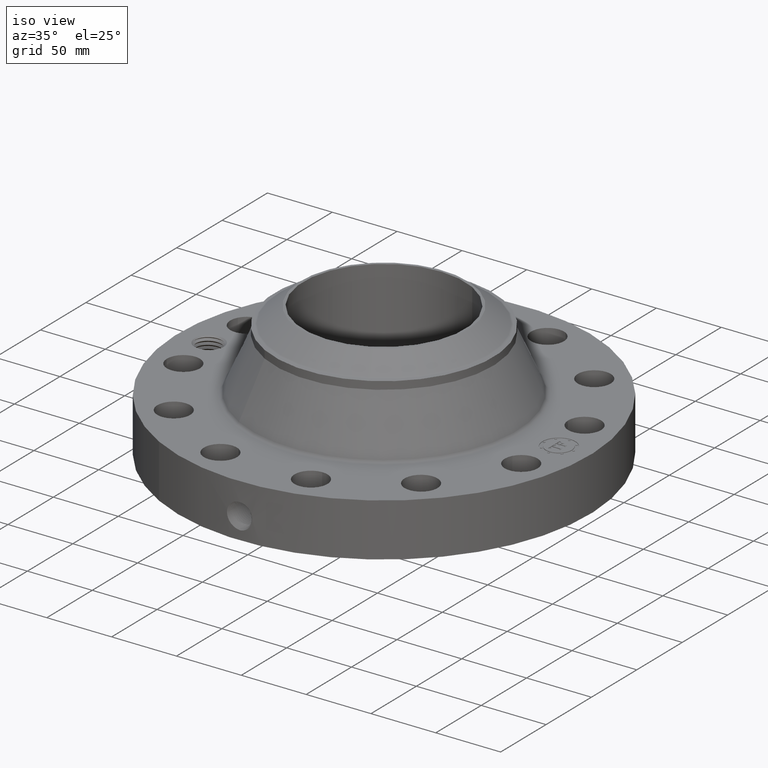
[diagram: clean part render]
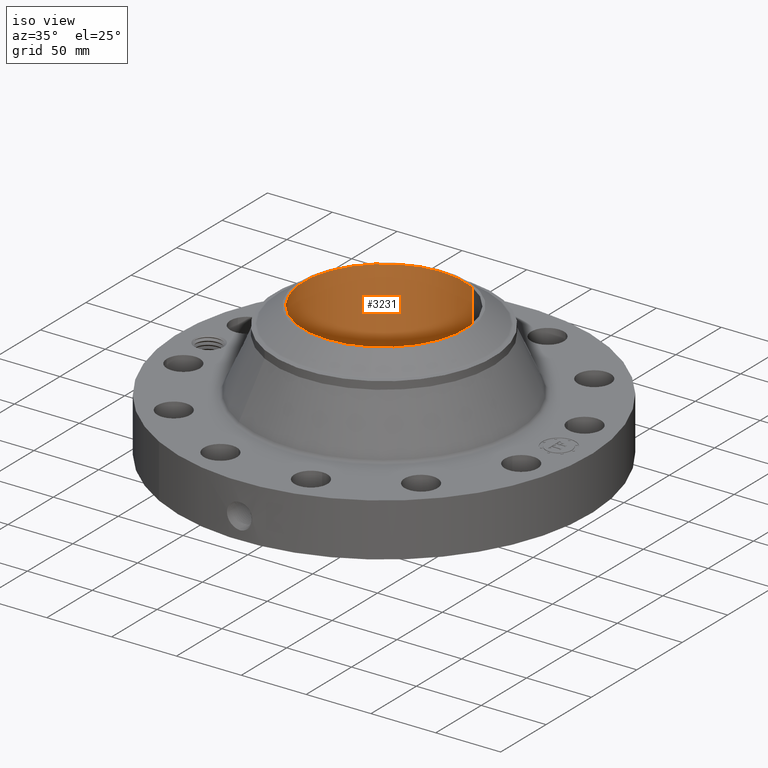
[diagram: same view with one face highlighted and labeled with its STEP entity id]
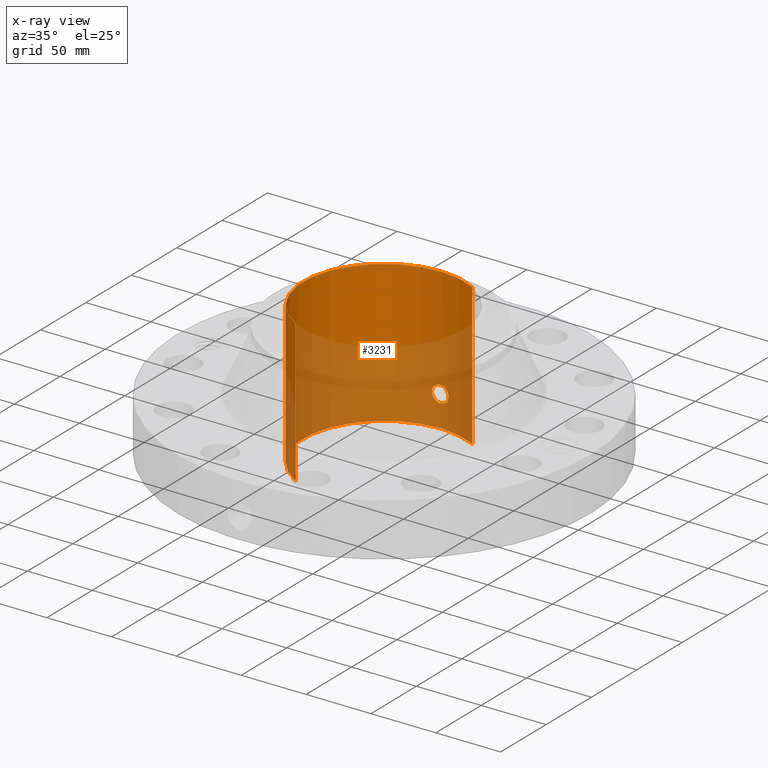
[diagram: x-ray of the same camera — body ghosted, the highlighted face saturated]
A machine part, iso view. The second image highlights one B-rep face of the part: STEP entity #3231.
The next image is the same camera in x-ray: the body ghosted, the highlighted face saturated — about 55% of this face is hidden behind the body in this view.
In plain terms, the highlighted cylindrical surface (partial cylindrical patch) has radius 62.1919 mm, axis along (0, 0, -1).
Its self-contained STEP definition (entity closure, byte-faithful):
#2422=AXIS2_PLACEMENT_3D('Circle Axis2P3D',#2420,#2421,$) ;
#3108=AXIS2_PLACEMENT_3D('Cylinder Axis2P3D',#3105,#3106,#3107) ;
#3180=AXIS2_PLACEMENT_3D('Circle Axis2P3D',#3178,#3179,$) ;
#2415=CARTESIAN_POINT('Vertex',(1.17387343128,2.1487609028,-5.31508345647E-015)) ;
#2417=CARTESIAN_POINT('Vertex',(-1.17387343128,-2.1487609028,-5.31508345647E-015)) ;
#2420=CARTESIAN_POINT('Axis2P3D Location',(0.,0.,0.)) ;
#3105=CARTESIAN_POINT('Axis2P3D Location',(0.,0.,2.15500000001)) ;
#3114=CARTESIAN_POINT('Vertex',(1.17387343128,2.1487609028,4.31000000002)) ;
#3116=CARTESIAN_POINT('Vertex',(-1.17387343128,-2.1487609028,4.31000000002)) ;
#3119=CARTESIAN_POINT('Line Origine',(1.17387343128,2.1487609028,2.15500000001)) ;
#3124=CARTESIAN_POINT('Line Origine',(-1.17387343128,-2.1487609028,2.15500000001)) ;
#3178=CARTESIAN_POINT('Axis2P3D Location',(0.,0.,4.31000000002)) ;
#3190=CARTESIAN_POINT('Control Point',(0.219395640473,2.43865081613,1.05985638466)) ;
#3191=CARTESIAN_POINT('Control Point',(0.20692269215,2.4397729573,1.08268796342)) ;
#3192=CARTESIAN_POINT('Control Point',(0.191483626173,2.44108155863,1.10388995895)) ;
#3193=CARTESIAN_POINT('Control Point',(0.173359206825,2.44247509002,1.12295451163)) ;
#3194=CARTESIAN_POINT('Control Point',(0.112235026015,2.44650024415,1.17237969937)) ;
#3195=CARTESIAN_POINT('Control Point',(0.0351525956358,2.44911528488,1.19593316279)) ;
#3196=CARTESIAN_POINT('Control Point',(-0.0193796331724,2.44931496356,1.1976122153)) ;
#3197=CARTESIAN_POINT('Control Point',(-0.12391182616,2.44644979063,1.17256256861)) ;
#3198=CARTESIAN_POINT('Control Point',(-0.202924261779,2.44049551426,1.09986114181)) ;
#3199=CARTESIAN_POINT('Control Point',(-0.231958041999,2.43755149918,1.053766482)) ;
#3200=CARTESIAN_POINT('Control Point',(-0.255797537372,2.43511034999,0.975563828251)) ;
#3201=CARTESIAN_POINT('Control Point',(-0.248358299347,2.43587136853,0.896057455654)) ;
#3202=CARTESIAN_POINT('Control Point',(-0.242122717022,2.43651927832,0.869373660638)) ;
#3203=CARTESIAN_POINT('Control Point',(-0.232361871819,2.43748429626,0.843878142626)) ;
#3204=CARTESIAN_POINT('Control Point',(-0.219395640473,2.43865081613,0.820143615352)) ;
#3205=CARTESIAN_POINT('Vertex',(0.219395640473,2.43865081613,1.05985638466)) ;
#3207=CARTESIAN_POINT('Vertex',(-0.219395640473,2.43865081613,0.820143615352)) ;
#3211=CARTESIAN_POINT('Control Point',(-0.219395640473,2.43865081613,0.820143615352)) ;
#3212=CARTESIAN_POINT('Control Point',(-0.206922692151,2.4397729573,0.797312036594)) ;
#3213=CARTESIAN_POINT('Control Point',(-0.191483626176,2.44108155863,0.776110041062)) ;
#3214=CARTESIAN_POINT('Control Point',(-0.173359206826,2.44247509002,0.757045488384)) ;
#3215=CARTESIAN_POINT('Control Point',(-0.112235026018,2.44650024415,0.707620300643)) ;
#3216=CARTESIAN_POINT('Control Point',(-0.035152595642,2.44911528488,0.684066837217)) ;
#3217=CARTESIAN_POINT('Control Point',(0.0193796331644,2.44931496356,0.682387784708)) ;
#3218=CARTESIAN_POINT('Control Point',(0.123911826174,2.44644979063,0.707437431402)) ;
#3219=CARTESIAN_POINT('Control Point',(0.202924261804,2.44049551426,0.780138858218)) ;
#3220=CARTESIAN_POINT('Control Point',(0.231958041985,2.43755149919,0.82623351796)) ;
#3221=CARTESIAN_POINT('Control Point',(0.255797537377,2.43511034999,0.904436171741)) ;
#3222=CARTESIAN_POINT('Control Point',(0.248358299346,2.43587136853,0.98394254437)) ;
#3223=CARTESIAN_POINT('Control Point',(0.242122717031,2.43651927831,1.01062633935)) ;
#3224=CARTESIAN_POINT('Control Point',(0.232361871824,2.43748429626,1.03612185737)) ;
#3225=CARTESIAN_POINT('Control Point',(0.219395640473,2.43865081613,1.05985638466)) ;
#2421=DIRECTION('Axis2P3D Direction',(0.,0.,-0.0393700787402)) ;
#3106=DIRECTION('Axis2P3D Direction',(0.,0.,-0.0393700787402)) ;
#3107=DIRECTION('Axis2P3D XDirection',(-0.0188750212049,-0.0345504945626,0.)) ;
#3120=DIRECTION('Vector Direction',(0.,0.,-0.0393700787402)) ;
#3125=DIRECTION('Vector Direction',(0.,0.,-0.0393700787402)) ;
#3179=DIRECTION('Axis2P3D Direction',(0.,0.,-0.0393700787402)) ;
#3121=VECTOR('Line Direction',#3120,0.0393700787402) ;
#3126=VECTOR('Line Direction',#3125,0.0393700787402) ;
#3184=ORIENTED_EDGE('',*,*,#3182,.F.) ;
#3185=ORIENTED_EDGE('',*,*,#3128,.T.) ;
#3186=ORIENTED_EDGE('',*,*,#2424,.T.) ;
#3187=ORIENTED_EDGE('',*,*,#3123,.F.) ;
#3228=ORIENTED_EDGE('',*,*,#3209,.F.) ;
#3229=ORIENTED_EDGE('',*,*,#3226,.F.) ;
#3230=FACE_BOUND('',#3227,.T.) ;
#3231=ADVANCED_FACE('PartBody',(#3188,#3230),#3109,.F.) ;
#3189=B_SPLINE_CURVE_WITH_KNOTS('',5,(#3190,#3191,#3192,#3193,#3194,#3195,#3196,#3197,#3198,#3199,#3200,#3201,#3202,#3203,#3204),.UNSPECIFIED.,.F.,.U.,(6,3,3,3,6),(0.,4.67703129293,14.0185621464,23.3684124738,28.2304120731),.UNSPECIFIED.) ;
#3210=B_SPLINE_CURVE_WITH_KNOTS('',5,(#3211,#3212,#3213,#3214,#3215,#3216,#3217,#3218,#3219,#3220,#3221,#3222,#3223,#3224,#3225),.UNSPECIFIED.,.F.,.U.,(6,3,3,3,6),(0.,4.67703129258,14.0185621461,23.368412477,28.2304120784),.UNSPECIFIED.) ;
#2423=CIRCLE('generated circle',#2422,2.44850000001) ;
#3181=CIRCLE('generated circle',#3180,2.44850000001) ;
#3109=CYLINDRICAL_SURFACE('generated cylinder',#3108,2.44850000001) ;
#2424=EDGE_CURVE('',#2418,#2416,#2423,.T.) ;
#3123=EDGE_CURVE('',#3115,#2416,#3122,.T.) ;
#3128=EDGE_CURVE('',#3117,#2418,#3127,.T.) ;
#3182=EDGE_CURVE('',#3117,#3115,#3181,.T.) ;
#3209=EDGE_CURVE('',#3206,#3208,#3189,.T.) ;
#3226=EDGE_CURVE('',#3208,#3206,#3210,.T.) ;
#3183=EDGE_LOOP('',(#3184,#3185,#3186,#3187)) ;
#3227=EDGE_LOOP('',(#3228,#3229)) ;
#3188=FACE_OUTER_BOUND('',#3183,.T.) ;
#3122=LINE('Line',#3119,#3121) ;
#3127=LINE('Line',#3124,#3126) ;
#2416=VERTEX_POINT('',#2415) ;
#2418=VERTEX_POINT('',#2417) ;
#3115=VERTEX_POINT('',#3114) ;
#3117=VERTEX_POINT('',#3116) ;
#3206=VERTEX_POINT('',#3205) ;
#3208=VERTEX_POINT('',#3207) ;